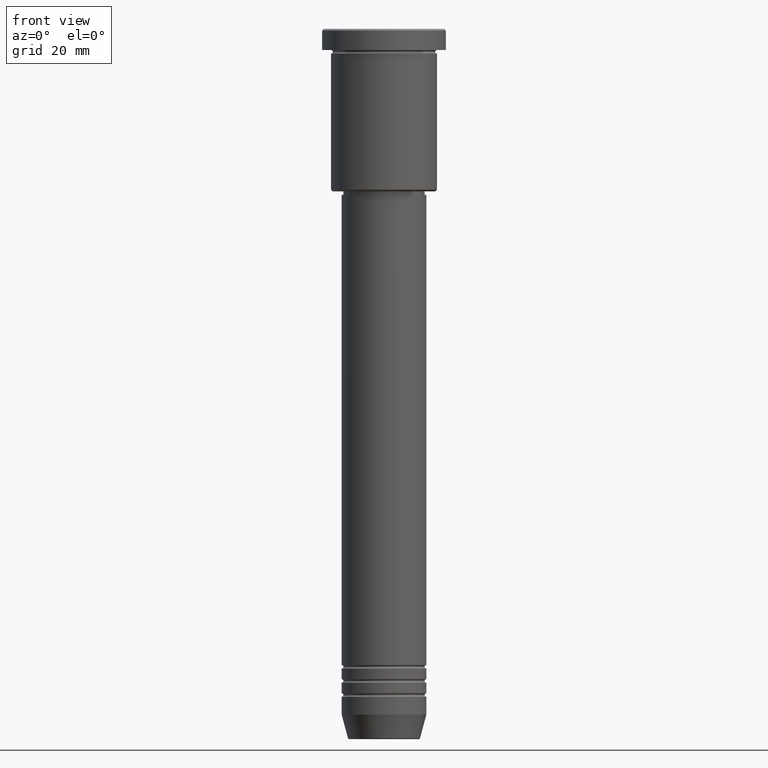
[diagram: clean part render]
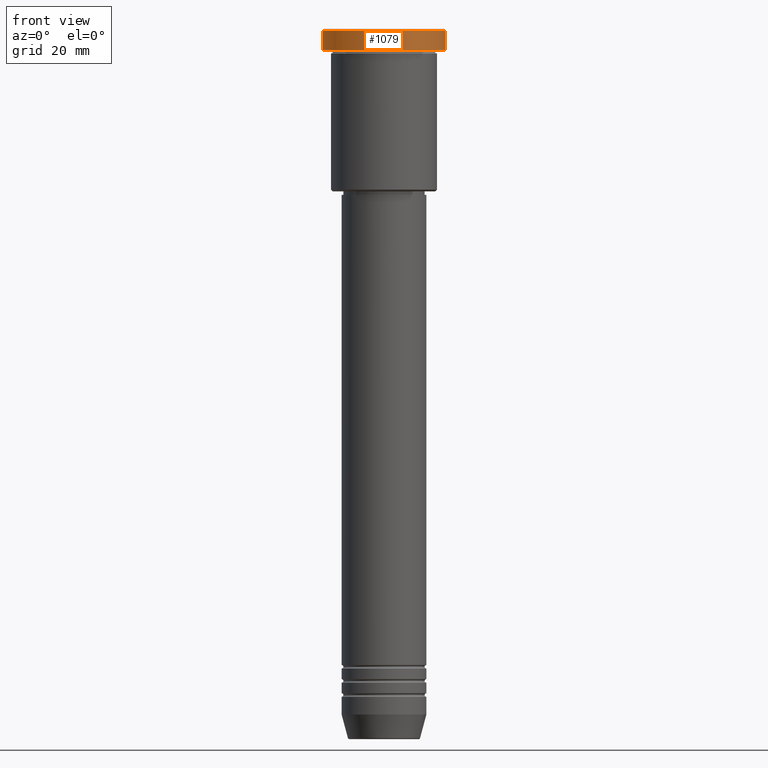
[diagram: same view with one face highlighted and labeled with its STEP entity id]
A machine part, front view. The second image highlights one B-rep face of the part: STEP entity #1079.
In plain terms, the highlighted cylindrical surface (partial cylindrical patch) has radius 17.5 mm, axis along (-0, -0, 1).
Its self-contained STEP definition (entity closure, byte-faithful):
#1 = CARTESIAN_POINT ( 'NONE',  ( 17.50000000000000000, 0.000000000000000000, 0.000000000000000000 ) ) ;
#36 = DIRECTION ( 'NONE',  ( -0.000000000000000000, -0.000000000000000000, 1.000000000000000000 ) ) ;
#58 = LINE ( 'NONE', #712, #1005 ) ;
#131 = CARTESIAN_POINT ( 'NONE',  ( -17.50000000000000000, 2.143131898507868248E-15, -0.5000000000000003331 ) ) ;
#284 = DIRECTION ( 'NONE',  ( -0.000000000000000000, -0.000000000000000000, 1.000000000000000000 ) ) ;
#290 = VERTEX_POINT ( 'NONE', #683 ) ;
#292 = AXIS2_PLACEMENT_3D ( 'NONE', #772, #36, #1142 ) ;
#309 = ORIENTED_EDGE ( 'NONE', *, *, #1058, .T. ) ;
#409 = CYLINDRICAL_SURFACE ( 'NONE', #292, 17.50000000000000000 ) ;
#424 = CARTESIAN_POINT ( 'NONE',  ( 0.000000000000000000, 0.000000000000000000, -5.999999999999995559 ) ) ;
#430 = ORIENTED_EDGE ( 'NONE', *, *, #974, .T. ) ;
#447 = VECTOR ( 'NONE', #284, 1000.000000000000000 ) ;
#468 = AXIS2_PLACEMENT_3D ( 'NONE', #424, #612, #894 ) ;
#474 = EDGE_CURVE ( 'NONE', #290, #1000, #58, .T. ) ;
#500 = EDGE_CURVE ( 'NONE', #290, #820, #789, .T. ) ;
#573 = DIRECTION ( 'NONE',  ( 1.000000000000000000, 0.000000000000000000, 0.000000000000000000 ) ) ;
#584 = CARTESIAN_POINT ( 'NONE',  ( 17.50000000000000000, 0.000000000000000000, -0.5000000000000003331 ) ) ;
#590 = VERTEX_POINT ( 'NONE', #584 ) ;
#612 = DIRECTION ( 'NONE',  ( -0.000000000000000000, -0.000000000000000000, 1.000000000000000000 ) ) ;
#669 = CARTESIAN_POINT ( 'NONE',  ( 0.000000000000000000, 0.000000000000000000, -0.5000000000000003331 ) ) ;
#683 = CARTESIAN_POINT ( 'NONE',  ( -17.50000000000000000, 2.143131898507868248E-15, -5.999999999999995559 ) ) ;
#712 = CARTESIAN_POINT ( 'NONE',  ( -17.50000000000000000, 2.143131898507868248E-15, 0.000000000000000000 ) ) ;
#739 = LINE ( 'NONE', #1, #447 ) ;
#755 = DIRECTION ( 'NONE',  ( 0.000000000000000000, 0.000000000000000000, -1.000000000000000000 ) ) ;
#772 = CARTESIAN_POINT ( 'NONE',  ( 0.000000000000000000, 0.000000000000000000, 0.000000000000000000 ) ) ;
#789 = CIRCLE ( 'NONE', #468, 17.50000000000000000 ) ;
#820 = VERTEX_POINT ( 'NONE', #1080 ) ;
#865 = EDGE_LOOP ( 'NONE', ( #1030, #903, #430, #309 ) ) ;
#894 = DIRECTION ( 'NONE',  ( 1.000000000000000000, 0.000000000000000000, 0.000000000000000000 ) ) ;
#903 = ORIENTED_EDGE ( 'NONE', *, *, #500, .T. ) ;
#940 = FACE_OUTER_BOUND ( 'NONE', #865, .T. ) ;
#963 = AXIS2_PLACEMENT_3D ( 'NONE', #669, #755, #573 ) ;
#974 = EDGE_CURVE ( 'NONE', #820, #590, #739, .T. ) ;
#1000 = VERTEX_POINT ( 'NONE', #131 ) ;
#1005 = VECTOR ( 'NONE', #1162, 1000.000000000000000 ) ;
#1030 = ORIENTED_EDGE ( 'NONE', *, *, #474, .F. ) ;
#1058 = EDGE_CURVE ( 'NONE', #590, #1000, #1171, .T. ) ;
#1079 = ADVANCED_FACE ( 'NONE', ( #940 ), #409, .T. ) ;
#1080 = CARTESIAN_POINT ( 'NONE',  ( 17.50000000000000000, 0.000000000000000000, -5.999999999999995559 ) ) ;
#1142 = DIRECTION ( 'NONE',  ( 1.000000000000000000, 0.000000000000000000, 0.000000000000000000 ) ) ;
#1162 = DIRECTION ( 'NONE',  ( -0.000000000000000000, -0.000000000000000000, 1.000000000000000000 ) ) ;
#1171 = CIRCLE ( 'NONE', #963, 17.50000000000000000 ) ;